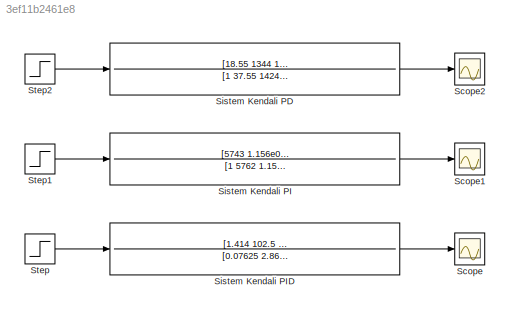
MODEL slx_3ef11b2461e8
KIND model
CONFIG AbsTol = auto
CONFIG EnableMultiTasking = off
CONFIG FixedStep = auto
CONFIG MaxStep = auto
CONFIG MinStep = auto
CONFIG RelTol = 1e-3
CONFIG SampleTimeConstraint = Unconstrained
CONFIG SolverName = VariableStepAuto
CONFIG StartTime = 0.0
CONFIG StopTime = 10.0
BLOCK [Scope] Scope
  Floating = off
  NumInputPorts = 1
  Ports = [1]
  ScopeSpecificationString = Simulink.scopes.TimeScopeBlockCfg('CurrentConfiguration', extmgr.ConfigurationSet(extmgr.Configuration('Core','General UI',true),extmgr.Configuration('Core','Source UI',true),extmgr.Configuration('Sources','WiredSimulink',true),extmgr.Configuration('Visuals','Time Domain',true,'SerializedDisplays',{struct('MinYLimReal','-0.20803','MaxYLimReal','1.87226','YLabelReal','','MinYLimMag','0.00000','MaxY...<+1361ch>
BLOCK [Scope] Scope1
  Floating = off
  NumInputPorts = 1
  Ports = [1]
  ScopeSpecificationString = Simulink.scopes.TimeScopeBlockCfg('CurrentConfiguration', extmgr.ConfigurationSet(extmgr.Configuration('Core','General UI',true),extmgr.Configuration('Core','Source UI',true),extmgr.Configuration('Sources','WiredSimulink',true,'DataLoggingVariableName','ScopeData1'),extmgr.Configuration('Visuals','Time Domain',true,'SerializedDisplays',{struct('MinYLimReal','-0.12555','MaxYLimReal','1.12994','YLab...<+1401ch>
BLOCK [Scope] Scope2
  Floating = off
  NumInputPorts = 1
  Ports = [1]
  ScopeSpecificationString = Simulink.scopes.TimeScopeBlockCfg('CurrentConfiguration', extmgr.ConfigurationSet(extmgr.Configuration('Core','General UI',true),extmgr.Configuration('Core','Source UI',true),extmgr.Configuration('Sources','WiredSimulink',true,'DataLoggingVariableName','ScopeData2'),extmgr.Configuration('Visuals','Time Domain',true,'SerializedDisplays',{struct('MinYLimReal','-0.17584','MaxYLimReal','1.58257','YLab...<+1401ch>
BLOCK [TransferFcn] Sistem Kendali PD
  Denominator = [1 37.55 1424 1.936e04]
  Numerator = [18.55 1344 1.946e04]
BLOCK [TransferFcn] Sistem Kendali PI
  Denominator = [1 5762  1.157e05 1.45e04]
  Numerator = [5743 1.156e05 1.46e04]
BLOCK [TransferFcn] Sistem Kendali PID
  Denominator = [0.07625 2.863 108.6 2449 1.946e04]
  Numerator = [1.414 102.5 2457 1.946e04]
BLOCK [Step] Step
  SampleTime = 0
BLOCK [Step] Step1
  SampleTime = 0
BLOCK [Step] Step2
  SampleTime = 0
LINE Sistem Kendali PD:1 -> Scope2:1
LINE Sistem Kendali PI:1 -> Scope1:1
LINE Sistem Kendali PID:1 -> Scope:1
LINE Step1:1 -> Sistem Kendali PI:1
LINE Step2:1 -> Sistem Kendali PD:1
LINE Step:1 -> Sistem Kendali PID:1
